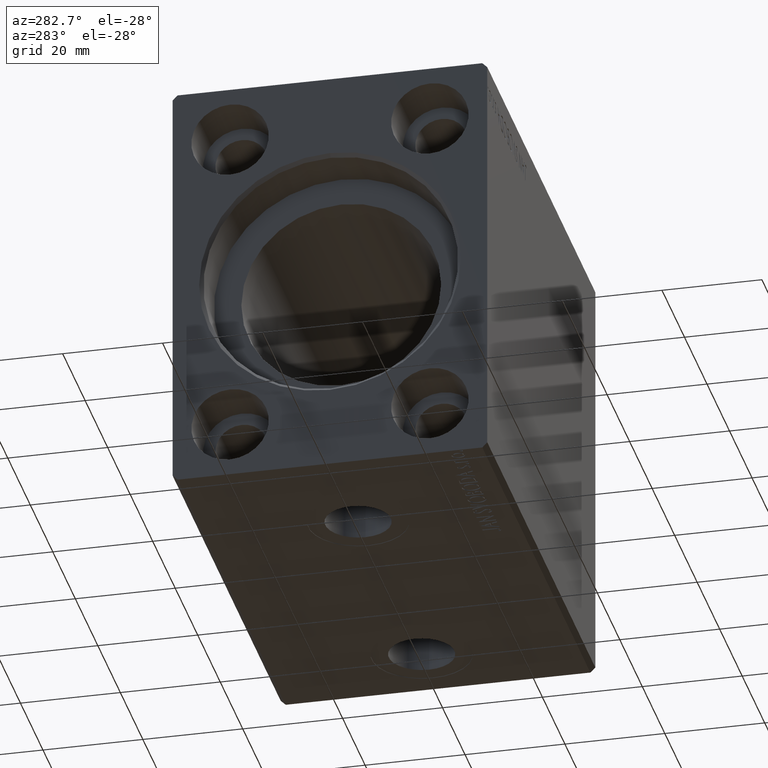
[diagram: clean part render]
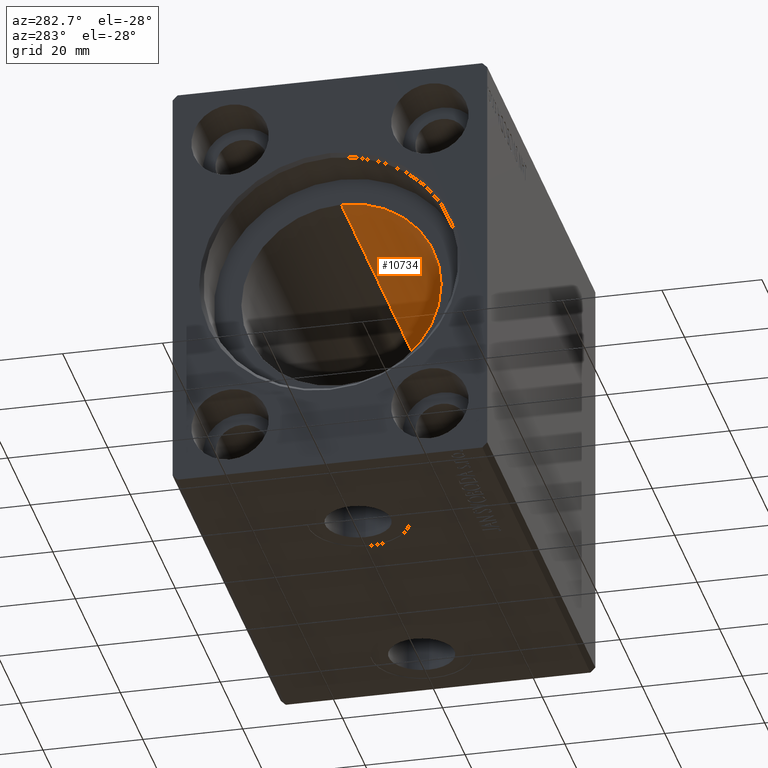
[diagram: same view with one face highlighted and labeled with its STEP entity id]
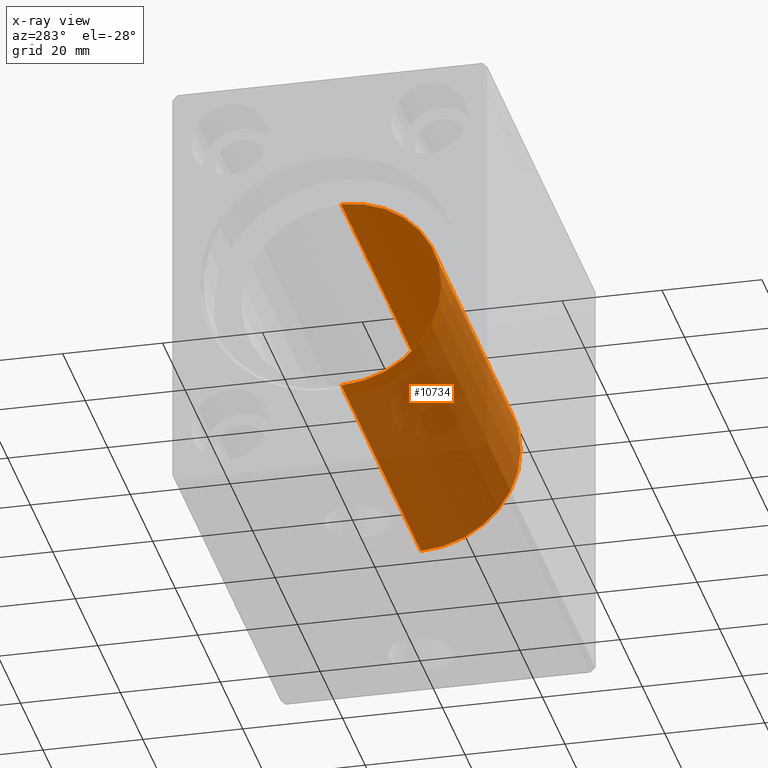
[diagram: x-ray of the same camera — body ghosted, the highlighted face saturated]
A machine part, auxiliary view. The second image highlights one B-rep face of the part: STEP entity #10734.
The next image is the same camera in x-ray: the body ghosted, the highlighted face saturated — about 72% of this face is hidden behind the body in this view.
In plain terms, the highlighted cylindrical surface (partial cylindrical patch) has radius 20 mm, axis along (-1, -0, -0).
Its self-contained STEP definition (entity closure, byte-faithful):
#2516 = DIRECTION ( 'NONE',  ( -1.000000000000000000, -0.000000000000000000, -0.000000000000000000 ) ) ;
#2529 = CARTESIAN_POINT ( 'NONE',  ( 9.999999999999994671, 0.000000000000000000, 0.000000000000000000 ) ) ;
#6362 = EDGE_CURVE ( 'NONE', #29516, #28221, #39301, .T. ) ;
#6597 = EDGE_CURVE ( 'NONE', #33935, #28221, #21111, .T. ) ;
#8536 = FACE_OUTER_BOUND ( 'NONE', #38551, .T. ) ;
#9727 = EDGE_CURVE ( 'NONE', #17608, #33935, #38190, .T. ) ;
#10734 = ADVANCED_FACE ( 'NONE', ( #8536 ), #15397, .F. ) ;
#12377 = DIRECTION ( 'NONE',  ( 0.000000000000000000, 0.000000000000000000, 1.000000000000000000 ) ) ;
#14322 = AXIS2_PLACEMENT_3D ( 'NONE', #41817, #34745, #12377 ) ;
#15397 = CYLINDRICAL_SURFACE ( 'NONE', #14322, 20.00000000000000000 ) ;
#15977 = CIRCLE ( 'NONE', #26241, 20.00000000000000000 ) ;
#16036 = CARTESIAN_POINT ( 'NONE',  ( 80.70000000000000284, 2.449293598294706513E-15, -20.00000000000000000 ) ) ;
#17608 = VERTEX_POINT ( 'NONE', #36235 ) ;
#17786 = CARTESIAN_POINT ( 'NONE',  ( 9.999999999999994671, 2.449293598294706513E-15, -20.00000000000000000 ) ) ;
#20789 = CARTESIAN_POINT ( 'NONE',  ( 80.70000000000000284, 0.000000000000000000, 0.000000000000000000 ) ) ;
#21111 = CIRCLE ( 'NONE', #29988, 20.00000000000000000 ) ;
#21168 = VECTOR ( 'NONE', #2516, 1000.000000000000000 ) ;
#23168 = DIRECTION ( 'NONE',  ( -1.000000000000000000, -0.000000000000000000, -0.000000000000000000 ) ) ;
#23352 = ORIENTED_EDGE ( 'NONE', *, *, #6362, .F. ) ;
#24880 = DIRECTION ( 'NONE',  ( -1.000000000000000000, 0.000000000000000000, 0.000000000000000000 ) ) ;
#25219 = VECTOR ( 'NONE', #23168, 1000.000000000000000 ) ;
#25533 = EDGE_CURVE ( 'NONE', #17608, #29516, #15977, .T. ) ;
#26241 = AXIS2_PLACEMENT_3D ( 'NONE', #20789, #34334, #33691 ) ;
#28221 = VERTEX_POINT ( 'NONE', #29722 ) ;
#29516 = VERTEX_POINT ( 'NONE', #37026 ) ;
#29608 = CARTESIAN_POINT ( 'NONE',  ( 80.70000000000000284, 0.000000000000000000, 20.00000000000000000 ) ) ;
#29722 = CARTESIAN_POINT ( 'NONE',  ( 9.999999999999994671, 0.000000000000000000, 20.00000000000000000 ) ) ;
#29988 = AXIS2_PLACEMENT_3D ( 'NONE', #2529, #24880, #38825 ) ;
#32506 = ORIENTED_EDGE ( 'NONE', *, *, #6597, .T. ) ;
#33691 = DIRECTION ( 'NONE',  ( 0.000000000000000000, 0.000000000000000000, 1.000000000000000000 ) ) ;
#33935 = VERTEX_POINT ( 'NONE', #17786 ) ;
#34334 = DIRECTION ( 'NONE',  ( -1.000000000000000000, 0.000000000000000000, 0.000000000000000000 ) ) ;
#34745 = DIRECTION ( 'NONE',  ( -1.000000000000000000, -0.000000000000000000, -0.000000000000000000 ) ) ;
#36235 = CARTESIAN_POINT ( 'NONE',  ( 80.70000000000000284, 2.449293598294706513E-15, -20.00000000000000000 ) ) ;
#37026 = CARTESIAN_POINT ( 'NONE',  ( 80.70000000000000284, 0.000000000000000000, 20.00000000000000000 ) ) ;
#37893 = ORIENTED_EDGE ( 'NONE', *, *, #9727, .T. ) ;
#38181 = ORIENTED_EDGE ( 'NONE', *, *, #25533, .F. ) ;
#38190 = LINE ( 'NONE', #16036, #21168 ) ;
#38551 = EDGE_LOOP ( 'NONE', ( #38181, #37893, #32506, #23352 ) ) ;
#38825 = DIRECTION ( 'NONE',  ( 0.000000000000000000, 0.000000000000000000, 1.000000000000000000 ) ) ;
#39301 = LINE ( 'NONE', #29608, #25219 ) ;
#41817 = CARTESIAN_POINT ( 'NONE',  ( 80.70000000000000284, 0.000000000000000000, 0.000000000000000000 ) ) ;